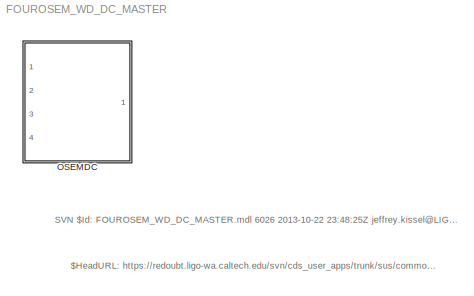
MODEL FOUROSEM_WD_DC_MASTER
KIND library
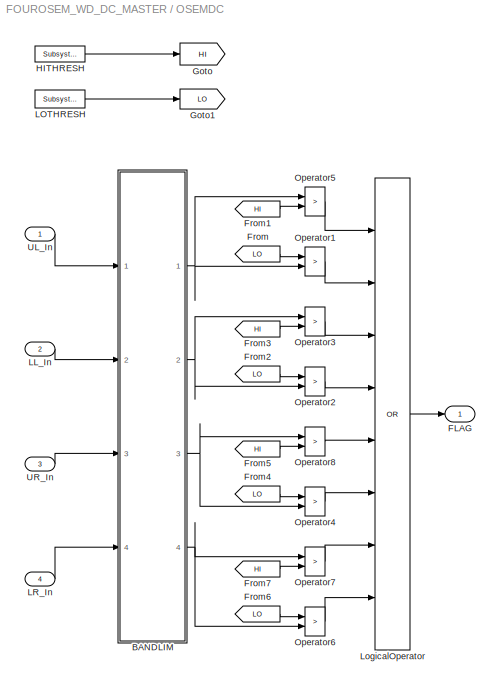
BLOCK [SubSystem] OSEMDC
  FunctionWithSeparateData = off
  MaskHideContents = off
  MinAlgLoopOccurrences = off
  Opaque = off
  Ports = [4, 1]
  PropExecContextOutsideSubsystem = off
  RTWSystemCode = Auto
  RequestExecContextInheritance = off
  SID = 1
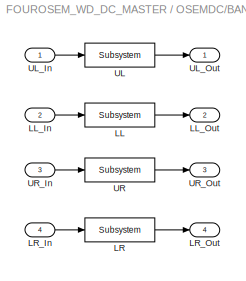
BLOCK [SubSystem] OSEMDC/BANDLIM
  FunctionWithSeparateData = off
  MaskHideContents = off
  MinAlgLoopOccurrences = off
  Opaque = off
  Ports = [4, 4]
  PropExecContextOutsideSubsystem = off
  RTWSystemCode = Auto
  RequestExecContextInheritance = off
  SID = 10
BLOCK [Reference] OSEMDC/BANDLIM/LL  REF=cdsFilt/Subsystem
  AttributesFormatString = %<Tag>
  Description = Purpose:                                                                                                                                                                                                                                  \nStandard CDS IIR filter module.                                                                                                                                     ...<+1302ch>  <repeated x4 — deduplicated; at blocks: LL, LR, UL, UR>
  FunctionWithSeparateData = off
  Ports = [1, 1]
  RTWMemSecDataConstants = Inherit from model
  RTWMemSecDataInternal = Inherit from model
  RTWMemSecDataParameters = Inherit from model
  RTWMemSecFuncExecute = Inherit from model
  RTWMemSecFuncInitTerm = Inherit from model
  SID = 15
  ShowPortLabels = FromPortIcon
  SourceBlock = cdsFilt/Subsystem
  SourceType = SubSystem
  SystemSampleTime = -1
  Tag = cdsFilt
BLOCK [Inport] OSEMDC/BANDLIM/LL_In
  IconDisplay = Port number
  Port = 2
  SID = 12
BLOCK [Outport] OSEMDC/BANDLIM/LL_Out
  IconDisplay = Port number
  Port = 2
  SID = 20
BLOCK [Reference] OSEMDC/BANDLIM/LR  REF=cdsFilt/Subsystem
  AttributesFormatString = %<Tag>
  FunctionWithSeparateData = off
  Ports = [1, 1]
  RTWMemSecDataConstants = Inherit from model
  RTWMemSecDataInternal = Inherit from model
  RTWMemSecDataParameters = Inherit from model
  RTWMemSecFuncExecute = Inherit from model
  RTWMemSecFuncInitTerm = Inherit from model
  SID = 16
  ShowPortLabels = FromPortIcon
  SourceBlock = cdsFilt/Subsystem
  SourceType = SubSystem
  SystemSampleTime = -1
  Tag = cdsFilt
BLOCK [Inport] OSEMDC/BANDLIM/LR_In
  IconDisplay = Port number
  Port = 4
  SID = 14
BLOCK [Outport] OSEMDC/BANDLIM/LR_Out
  IconDisplay = Port number
  Port = 4
  SID = 22
BLOCK [Reference] OSEMDC/BANDLIM/UL  REF=cdsFilt/Subsystem
  AttributesFormatString = %<Tag>
  FunctionWithSeparateData = off
  Ports = [1, 1]
  RTWMemSecDataConstants = Inherit from model
  RTWMemSecDataInternal = Inherit from model
  RTWMemSecDataParameters = Inherit from model
  RTWMemSecFuncExecute = Inherit from model
  RTWMemSecFuncInitTerm = Inherit from model
  SID = 17
  ShowPortLabels = FromPortIcon
  SourceBlock = cdsFilt/Subsystem
  SourceType = SubSystem
  SystemSampleTime = -1
  Tag = cdsFilt
BLOCK [Inport] OSEMDC/BANDLIM/UL_In
  IconDisplay = Port number
  SID = 11
BLOCK [Outport] OSEMDC/BANDLIM/UL_Out
  IconDisplay = Port number
  SID = 19
BLOCK [Reference] OSEMDC/BANDLIM/UR  REF=cdsFilt/Subsystem
  AttributesFormatString = %<Tag>
  FunctionWithSeparateData = off
  Ports = [1, 1]
  RTWMemSecDataConstants = Inherit from model
  RTWMemSecDataInternal = Inherit from model
  RTWMemSecDataParameters = Inherit from model
  RTWMemSecFuncExecute = Inherit from model
  RTWMemSecFuncInitTerm = Inherit from model
  SID = 18
  ShowPortLabels = FromPortIcon
  SourceBlock = cdsFilt/Subsystem
  SourceType = SubSystem
  SystemSampleTime = -1
  Tag = cdsFilt
BLOCK [Inport] OSEMDC/BANDLIM/UR_In
  IconDisplay = Port number
  Port = 3
  SID = 13
BLOCK [Outport] OSEMDC/BANDLIM/UR_Out
  IconDisplay = Port number
  Port = 3
  SID = 21
BLOCK [Outport] OSEMDC/FLAG
  IconDisplay = Port number
  SID = 41
BLOCK [From] OSEMDC/From
  CloseFcn = tagdialog Close
  GotoTag = LO
  SID = 61
BLOCK [From] OSEMDC/From1
  CloseFcn = tagdialog Close
  GotoTag = HI
  SID = 62
BLOCK [From] OSEMDC/From2
  CloseFcn = tagdialog Close
  GotoTag = LO
  SID = 63
BLOCK [From] OSEMDC/From3
  CloseFcn = tagdialog Close
  GotoTag = HI
  SID = 64
BLOCK [From] OSEMDC/From4
  CloseFcn = tagdialog Close
  GotoTag = LO
  SID = 65
BLOCK [From] OSEMDC/From5
  CloseFcn = tagdialog Close
  GotoTag = HI
  SID = 66
BLOCK [From] OSEMDC/From6
  CloseFcn = tagdialog Close
  GotoTag = LO
  SID = 67
BLOCK [From] OSEMDC/From7
  CloseFcn = tagdialog Close
  GotoTag = HI
  SID = 68
BLOCK [Goto] OSEMDC/Goto
  GotoTag = HI
  SID = 59
BLOCK [Goto] OSEMDC/Goto1
  GotoTag = LO
  SID = 60
BLOCK [Reference] OSEMDC/HITHRESH  REF=cdsEpicsIn/Subsystem
  AttributesFormatString = %<Tag>
  Description = Purpose:                                                                              \nCreate an EPICS input channel connection to the FE realtime controls.                 \n                                                                                      \nOperation:                                                                            \nOutputs value from an EPICS ai record. Value is ...<+266ch>
  FunctionWithSeparateData = off
  Ports = [0, 1]
  RTWMemSecDataConstants = Inherit from model
  RTWMemSecDataInternal = Inherit from model
  RTWMemSecDataParameters = Inherit from model
  RTWMemSecFuncExecute = Inherit from model
  RTWMemSecFuncInitTerm = Inherit from model
  SID = 43
  ShowPortLabels = FromPortIcon
  SourceBlock = cdsEpicsIn/Subsystem
  SourceType = SubSystem
  SystemSampleTime = -1
  Tag = cdsEpicsIn
BLOCK [Inport] OSEMDC/LL_In
  IconDisplay = Port number
  Port = 2
  SID = 3
BLOCK [Reference] OSEMDC/LOTHRESH  REF=cdsEpicsIn/Subsystem
  AttributesFormatString = %<Tag>
  Description = Purpose:                                                                              \nCreate an EPICS input channel connection to the FE realtime controls.                 \n                                                                                      \nOperation:                                                                            \nOutputs value from an EPICS ai record. Value is ...<+266ch>
  FunctionWithSeparateData = off
  Ports = [0, 1]
  RTWMemSecDataConstants = Inherit from model
  RTWMemSecDataInternal = Inherit from model
  RTWMemSecDataParameters = Inherit from model
  RTWMemSecFuncExecute = Inherit from model
  RTWMemSecFuncInitTerm = Inherit from model
  SID = 44
  ShowPortLabels = FromPortIcon
  SourceBlock = cdsEpicsIn/Subsystem
  SourceType = SubSystem
  SystemSampleTime = -1
  Tag = cdsEpicsIn
BLOCK [Inport] OSEMDC/LR_In
  IconDisplay = Port number
  Port = 4
  SID = 5
BLOCK [Logic] OSEMDC/LogicalOperator
  AllPortsSameDT = off
  Inputs = 8
  Operator = OR
  OutDataTypeStr = boolean
  Ports = [8, 1]
  SID = 46
BLOCK [RelationalOperator] OSEMDC/Operator1
  InputSameDT = off
  Operator = >
  OutDataTypeStr = boolean
  Ports = [2, 1]
  SID = 29
BLOCK [RelationalOperator] OSEMDC/Operator2
  InputSameDT = off
  Operator = >
  OutDataTypeStr = boolean
  Ports = [2, 1]
  SID = 47
BLOCK [RelationalOperator] OSEMDC/Operator3
  InputSameDT = off
  Operator = >
  OutDataTypeStr = boolean
  Ports = [2, 1]
  SID = 48
BLOCK [RelationalOperator] OSEMDC/Operator4
  InputSameDT = off
  Operator = >
  OutDataTypeStr = boolean
  Ports = [2, 1]
  SID = 51
BLOCK [RelationalOperator] OSEMDC/Operator5
  InputSameDT = off
  Operator = >
  OutDataTypeStr = boolean
  Ports = [2, 1]
  SID = 45
BLOCK [RelationalOperator] OSEMDC/Operator6
  InputSameDT = off
  Operator = >
  OutDataTypeStr = boolean
  Ports = [2, 1]
  SID = 52
BLOCK [RelationalOperator] OSEMDC/Operator7
  InputSameDT = off
  Operator = >
  OutDataTypeStr = boolean
  Ports = [2, 1]
  SID = 53
BLOCK [RelationalOperator] OSEMDC/Operator8
  InputSameDT = off
  Operator = >
  OutDataTypeStr = boolean
  Ports = [2, 1]
  SID = 54
BLOCK [Inport] OSEMDC/UL_In
  IconDisplay = Port number
  SID = 2
BLOCK [Inport] OSEMDC/UR_In
  IconDisplay = Port number
  Port = 3
  SID = 4
ANNOTATION (root): $HeadURL: https://redoubt.ligo-wa.caltech.edu/svn/cds_user_apps/trunk/sus/common/models/FOUROSEM_WD_DC_MASTER.mdl $
ANNOTATION (root): SVN $Id: FOUROSEM_WD_DC_MASTER.mdl 6026 2013-10-22 23:48:25Z <email> $
LINE OSEMDC/BANDLIM/LL:1 -> OSEMDC/BANDLIM/LL_Out:1
LINE OSEMDC/BANDLIM/LL_In:1 -> OSEMDC/BANDLIM/LL:1
LINE OSEMDC/BANDLIM/LR:1 -> OSEMDC/BANDLIM/LR_Out:1
LINE OSEMDC/BANDLIM/LR_In:1 -> OSEMDC/BANDLIM/LR:1
LINE OSEMDC/BANDLIM/UL:1 -> OSEMDC/BANDLIM/UL_Out:1
LINE OSEMDC/BANDLIM/UL_In:1 -> OSEMDC/BANDLIM/UL:1
LINE OSEMDC/BANDLIM/UR:1 -> OSEMDC/BANDLIM/UR_Out:1
LINE OSEMDC/BANDLIM/UR_In:1 -> OSEMDC/BANDLIM/UR:1
NET OSEMDC/BANDLIM:1 -> OSEMDC/Operator1:2, OSEMDC/Operator5:1
NET OSEMDC/BANDLIM:2 -> OSEMDC/Operator2:2, OSEMDC/Operator3:1
NET OSEMDC/BANDLIM:3 -> OSEMDC/Operator4:2, OSEMDC/Operator8:1
NET OSEMDC/BANDLIM:4 -> OSEMDC/Operator6:2, OSEMDC/Operator7:1
LINE OSEMDC/From1:1 -> OSEMDC/Operator5:2
LINE OSEMDC/From2:1 -> OSEMDC/Operator2:1
LINE OSEMDC/From3:1 -> OSEMDC/Operator3:2
LINE OSEMDC/From4:1 -> OSEMDC/Operator4:1
LINE OSEMDC/From5:1 -> OSEMDC/Operator8:2
LINE OSEMDC/From6:1 -> OSEMDC/Operator6:1
LINE OSEMDC/From7:1 -> OSEMDC/Operator7:2
LINE OSEMDC/From:1 -> OSEMDC/Operator1:1
LINE OSEMDC/HITHRESH:1 -> OSEMDC/Goto:1
LINE OSEMDC/LL_In:1 -> OSEMDC/BANDLIM:2
LINE OSEMDC/LOTHRESH:1 -> OSEMDC/Goto1:1
LINE OSEMDC/LR_In:1 -> OSEMDC/BANDLIM:4
LINE OSEMDC/LogicalOperator:1 -> OSEMDC/FLAG:1
LINE OSEMDC/Operator1:1 -> OSEMDC/LogicalOperator:2
LINE OSEMDC/Operator2:1 -> OSEMDC/LogicalOperator:4
LINE OSEMDC/Operator3:1 -> OSEMDC/LogicalOperator:3
LINE OSEMDC/Operator4:1 -> OSEMDC/LogicalOperator:6
LINE OSEMDC/Operator5:1 -> OSEMDC/LogicalOperator:1
LINE OSEMDC/Operator6:1 -> OSEMDC/LogicalOperator:8
LINE OSEMDC/Operator7:1 -> OSEMDC/LogicalOperator:7
LINE OSEMDC/Operator8:1 -> OSEMDC/LogicalOperator:5
LINE OSEMDC/UL_In:1 -> OSEMDC/BANDLIM:1
LINE OSEMDC/UR_In:1 -> OSEMDC/BANDLIM:3
note: NET lines group one-source signal fan-out (src -> all destinations, sorted); 1:1 wires keep LINE
